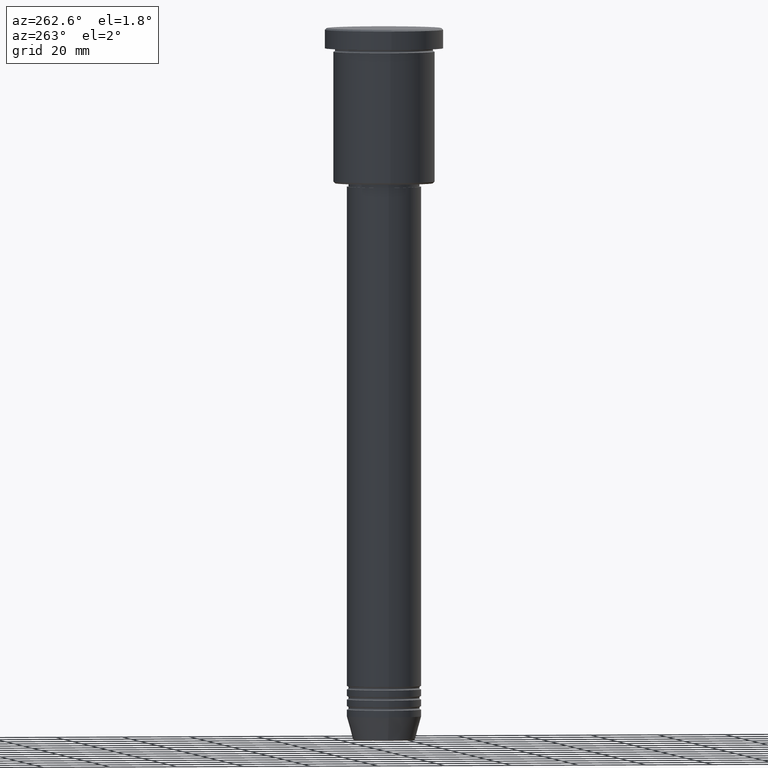
[diagram: clean part render]
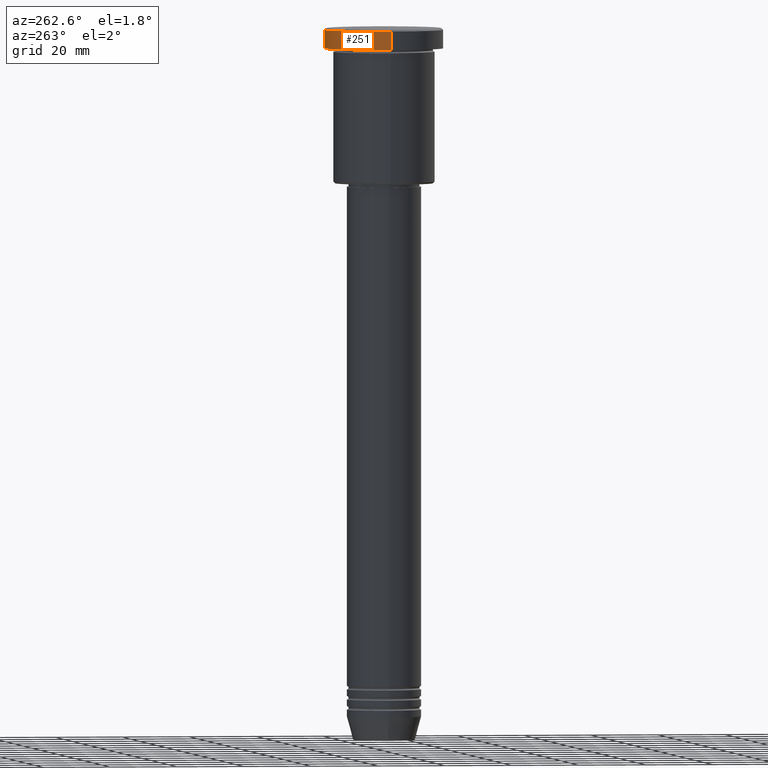
[diagram: same view with one face highlighted and labeled with its STEP entity id]
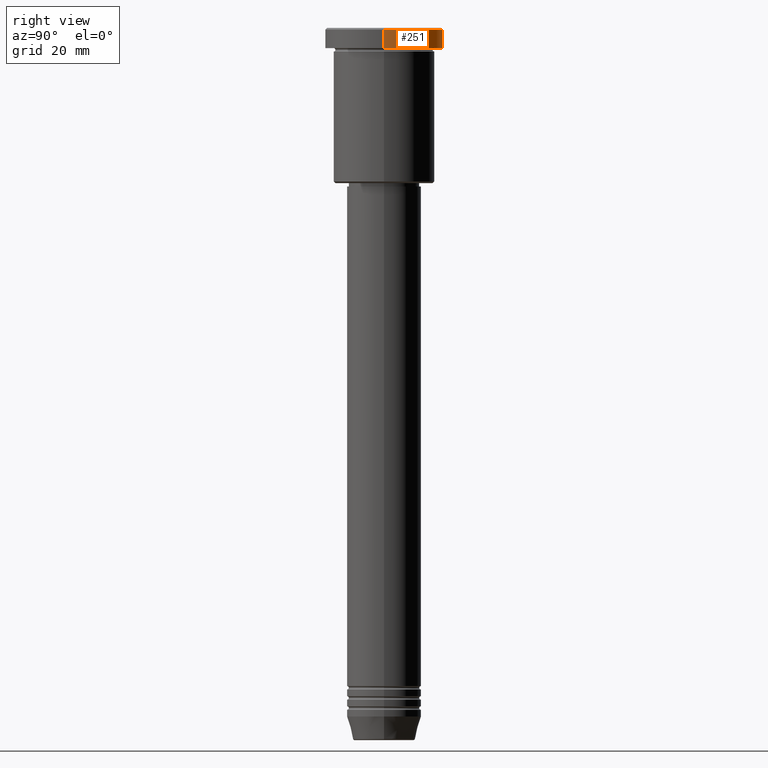
[diagram: same view with one face highlighted and labeled with its STEP entity id]
A machine part, auxiliary view. The second image highlights one B-rep face of the part: STEP entity #251.
A second angle (right view) of the same face is appended — the face is thin or edge-on in the first view.
In plain terms, the highlighted cylindrical surface (partial cylindrical patch) has radius 17.5 mm, axis along (-0, -0, 1).
Its self-contained STEP definition (entity closure, byte-faithful):
#2 = CARTESIAN_POINT ( 'NONE',  ( 0.000000000000000000, 0.000000000000000000, -0.5000000000000559552 ) ) ;
#11 = EDGE_LOOP ( 'NONE', ( #600, #588, #1085, #129 ) ) ;
#43 = VERTEX_POINT ( 'NONE', #1178 ) ;
#93 = VERTEX_POINT ( 'NONE', #167 ) ;
#101 = CYLINDRICAL_SURFACE ( 'NONE', #312, 17.50000000000000000 ) ;
#104 = VERTEX_POINT ( 'NONE', #607 ) ;
#129 = ORIENTED_EDGE ( 'NONE', *, *, #590, .F. ) ;
#163 = CIRCLE ( 'NONE', #908, 17.50000000000000000 ) ;
#167 = CARTESIAN_POINT ( 'NONE',  ( -17.50000000000000000, 2.143131898507868248E-15, -5.999999999999995559 ) ) ;
#181 = VECTOR ( 'NONE', #648, 1000.000000000000000 ) ;
#246 = CARTESIAN_POINT ( 'NONE',  ( 0.000000000000000000, 0.000000000000000000, -5.999999999999995559 ) ) ;
#251 = ADVANCED_FACE ( 'NONE', ( #738 ), #101, .T. ) ;
#266 = EDGE_CURVE ( 'NONE', #43, #104, #709, .T. ) ;
#280 = CARTESIAN_POINT ( 'NONE',  ( -17.50000000000000000, 2.143131898507868248E-15, 0.000000000000000000 ) ) ;
#312 = AXIS2_PLACEMENT_3D ( 'NONE', #1069, #984, #534 ) ;
#367 = VECTOR ( 'NONE', #943, 1000.000000000000000 ) ;
#421 = AXIS2_PLACEMENT_3D ( 'NONE', #2, #716, #996 ) ;
#534 = DIRECTION ( 'NONE',  ( 1.000000000000000000, 0.000000000000000000, 0.000000000000000000 ) ) ;
#574 = LINE ( 'NONE', #1032, #367 ) ;
#586 = EDGE_CURVE ( 'NONE', #975, #93, #163, .T. ) ;
#588 = ORIENTED_EDGE ( 'NONE', *, *, #1167, .T. ) ;
#590 = EDGE_CURVE ( 'NONE', #975, #104, #574, .T. ) ;
#600 = ORIENTED_EDGE ( 'NONE', *, *, #586, .T. ) ;
#607 = CARTESIAN_POINT ( 'NONE',  ( 17.50000000000000000, 0.000000000000000000, -0.5000000000000559552 ) ) ;
#636 = LINE ( 'NONE', #280, #181 ) ;
#644 = DIRECTION ( 'NONE',  ( 1.000000000000000000, 0.000000000000000000, 0.000000000000000000 ) ) ;
#648 = DIRECTION ( 'NONE',  ( -0.000000000000000000, -0.000000000000000000, 1.000000000000000000 ) ) ;
#709 = CIRCLE ( 'NONE', #421, 17.50000000000000000 ) ;
#716 = DIRECTION ( 'NONE',  ( 0.000000000000000000, 0.000000000000000000, -1.000000000000000000 ) ) ;
#738 = FACE_OUTER_BOUND ( 'NONE', #11, .T. ) ;
#896 = CARTESIAN_POINT ( 'NONE',  ( 17.50000000000000000, 0.000000000000000000, -5.999999999999995559 ) ) ;
#904 = DIRECTION ( 'NONE',  ( -0.000000000000000000, -0.000000000000000000, 1.000000000000000000 ) ) ;
#908 = AXIS2_PLACEMENT_3D ( 'NONE', #246, #904, #644 ) ;
#943 = DIRECTION ( 'NONE',  ( -0.000000000000000000, -0.000000000000000000, 1.000000000000000000 ) ) ;
#975 = VERTEX_POINT ( 'NONE', #896 ) ;
#984 = DIRECTION ( 'NONE',  ( -0.000000000000000000, -0.000000000000000000, 1.000000000000000000 ) ) ;
#996 = DIRECTION ( 'NONE',  ( 1.000000000000000000, 0.000000000000000000, 0.000000000000000000 ) ) ;
#1032 = CARTESIAN_POINT ( 'NONE',  ( 17.50000000000000000, 0.000000000000000000, 0.000000000000000000 ) ) ;
#1069 = CARTESIAN_POINT ( 'NONE',  ( 0.000000000000000000, 0.000000000000000000, 0.000000000000000000 ) ) ;
#1085 = ORIENTED_EDGE ( 'NONE', *, *, #266, .T. ) ;
#1167 = EDGE_CURVE ( 'NONE', #93, #43, #636, .T. ) ;
#1178 = CARTESIAN_POINT ( 'NONE',  ( -17.50000000000000000, 2.143131898507868248E-15, -0.5000000000000559552 ) ) ;